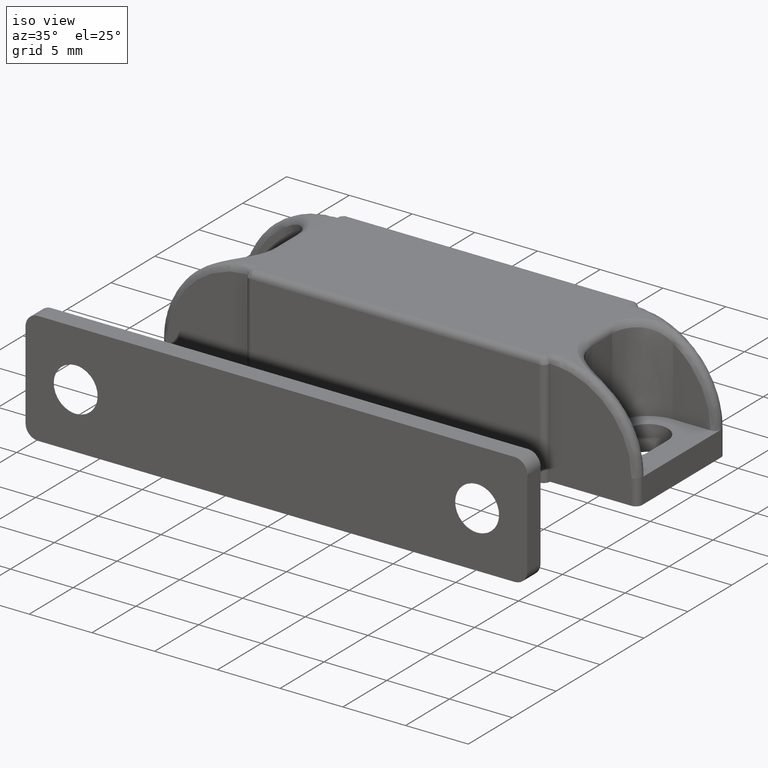
[diagram: clean part render]
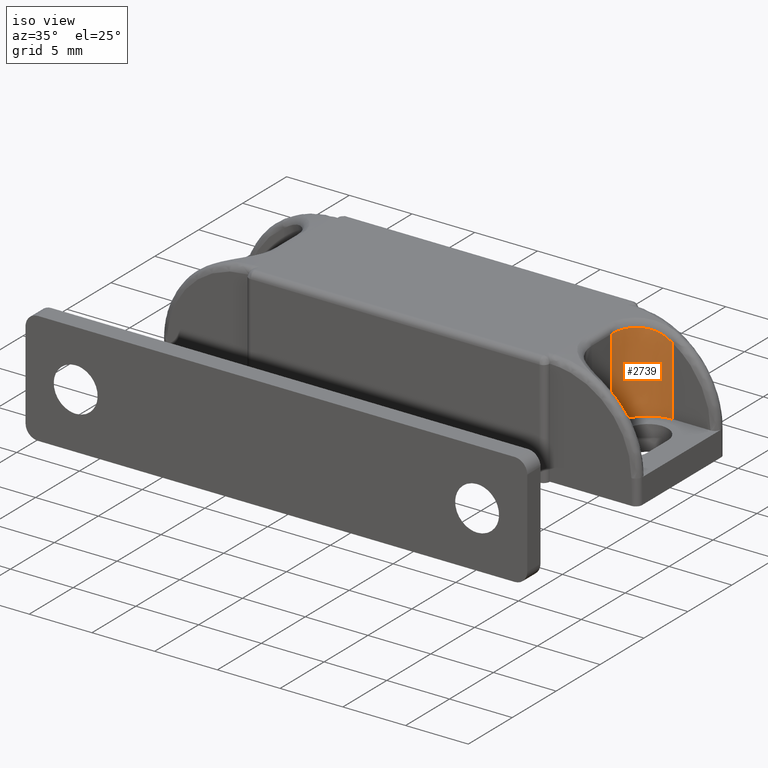
[diagram: same view with one face highlighted and labeled with its STEP entity id]
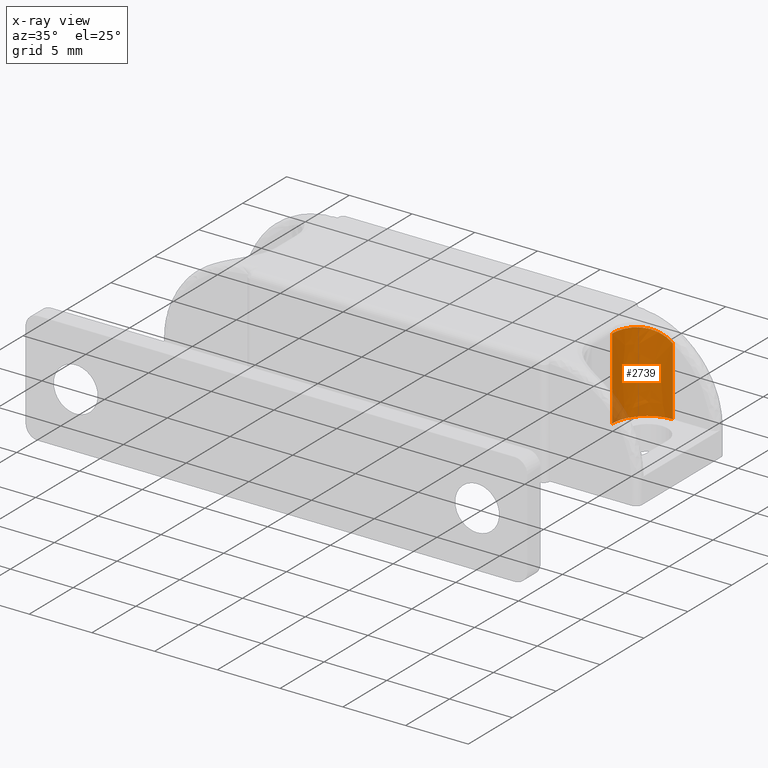
[diagram: x-ray of the same camera — body ghosted, the highlighted face saturated]
A machine part, iso view. The second image highlights one B-rep face of the part: STEP entity #2739.
The next image is the same camera in x-ray: the body ghosted, the highlighted face saturated — about 5% of this face is hidden behind the body in this view.
In plain terms, the highlighted face is a freeform B-spline surface patch.
Its self-contained STEP definition (entity closure, byte-faithful):
#1117=CARTESIAN_POINT('',(15.500000000000250,4.0,2.0));
#1118=VERTEX_POINT('',#1117);
#1124=CARTESIAN_POINT('',(12.649999999999601,1.149999999999296,2.0));
#1125=VERTEX_POINT('',#1124);
#1126=CARTESIAN_POINT('',(15.500000000000250,4.0,2.0));
#1127=CARTESIAN_POINT('',(12.649999999999631,3.999999999999915,2.000000000000000));
#1128=CARTESIAN_POINT('',(12.649999999999631,1.149999999999294,2.0));
#1136=(BOUNDED_CURVE()B_SPLINE_CURVE(2,(#1126,#1127,#1128),.UNSPECIFIED.,.F.,.U.)CURVE()GEOMETRIC_REPRESENTATION_ITEM()QUASI_UNIFORM_CURVE()RATIONAL_B_SPLINE_CURVE((1.0,0.707106781186548,1.0))REPRESENTATION_ITEM(''));
#1137=EDGE_CURVE('',#1118,#1125,#1136,.T.);
#1503=CARTESIAN_POINT('',(12.649999999999601,1.149999999999296,8.498269000280059));
#1504=VERTEX_POINT('',#1503);
#1718=CARTESIAN_POINT('',(15.500000000000250,4.0,7.477225575051480));
#1719=VERTEX_POINT('',#1718);
#1733=CARTESIAN_POINT('',(15.500000000000250,4.0,7.477225575051480));
#1734=CARTESIAN_POINT('',(15.342533980477061,3.999999999999915,7.595500917296441));
#1735=CARTESIAN_POINT('',(15.180854461800971,3.987048441760170,7.703745143861932));
#1736=CARTESIAN_POINT('',(14.932639988816611,3.944217609917127,7.851102248136860));
#1737=CARTESIAN_POINT('',(14.848953038572910,3.926022530853059,7.897716086630898));
#1738=CARTESIAN_POINT('',(14.679805799277609,3.880832237778185,7.985898137115862));
#1739=CARTESIAN_POINT('',(14.594077150637011,3.853682036269180,8.027550629756881));
#1740=CARTESIAN_POINT('',(14.341013269995100,3.759908199275444,8.142106545607671));
#1741=CARTESIAN_POINT('',(14.175765901301540,3.680636282963621,8.205744913337862));
#1742=CARTESIAN_POINT('',(13.975522623785180,3.558457956028936,8.271752995983142));
#1743=CARTESIAN_POINT('',(13.935792910791911,3.532860713563414,8.284276500943285));
#1744=CARTESIAN_POINT('',(13.857036058473120,3.479257067181568,8.308023474254382));
#1745=CARTESIAN_POINT('',(13.817887646184330,3.451153270729679,8.319278285485298));
#1746=CARTESIAN_POINT('',(13.702976020196131,3.364145027094741,8.350812170641655));
#1747=CARTESIAN_POINT('',(13.629470321188849,3.302405064075499,8.368962714956576));
#1748=CARTESIAN_POINT('',(13.488775695238990,3.171560198240437,8.400527408798020));
#1749=CARTESIAN_POINT('',(13.421586153425540,3.102455556498614,8.413939904119607));
#1750=CARTESIAN_POINT('',(13.325739390671661,2.993213907053859,8.431155364680498));
#1751=CARTESIAN_POINT('',(13.294614654677201,2.955867777508363,8.436409043755397));
#1752=CARTESIAN_POINT('',(13.234063765784629,2.879281912724904,8.446045716244440));
#1753=CARTESIAN_POINT('',(13.204556470927940,2.839925260656059,8.450439696385883));
#1754=CARTESIAN_POINT('',(13.062504246110960,2.639848501683703,8.470319312811046));
#1755=CARTESIAN_POINT('',(12.966764013490350,2.470319886999754,8.479632140527755));
#1756=CARTESIAN_POINT('',(12.849589419215651,2.202297983037884,8.488774612689145));
#1757=CARTESIAN_POINT('',(12.814939920676020,2.110558988094381,8.490993261740830));
#1758=CARTESIAN_POINT('',(12.754977430880819,1.922704532285648,8.494343706381095));
#1759=CARTESIAN_POINT('',(12.730094705148581,1.827971264131371,8.495455532326192));
#1760=CARTESIAN_POINT('',(12.670271691535341,1.541432254682525,8.497844561481713));
#1761=CARTESIAN_POINT('',(12.649999999999601,1.347312562967763,8.498269000280006));
#1762=CARTESIAN_POINT('',(12.649999999999601,1.149999999999296,8.498269000280009));
#1763=B_SPLINE_CURVE_WITH_KNOTS('',3,(#1733,#1734,#1735,#1736,#1737,#1738,#1739,#1740,#1741,#1742,#1743,#1744,#1745,#1746,#1747,#1748,#1749,#1750,#1751,#1752,#1753,#1754,#1755,#1756,#1757,#1758,#1759,#1760,#1761,#1762),.UNSPECIFIED.,.F.,.U.,(4,2,2,2,2,2,2,2,2,2,2,2,2,2,4),(0.0,0.125000000000000,0.187500000000000,0.250000000000000,0.375000000000001,0.406250000000001,0.437500000000001,0.500000000000000,0.562500000000000,0.593750000000000,0.625000000000000,0.750000000000001,0.812500000000000,0.875000000000000,1.0),.UNSPECIFIED.);
#1764=EDGE_CURVE('',#1719,#1504,#1763,.T.);
#2704=CARTESIAN_POINT('',(12.649999999999601,1.149999999999296,8.498269000280059));
#2705=CARTESIAN_POINT('',(12.649999999999601,1.149999999999296,2.0));
#2706=QUASI_UNIFORM_CURVE('',1,(#2704,#2705),.UNSPECIFIED.,.F.,.U.);
#2707=EDGE_CURVE('',#1504,#1125,#2706,.T.);
#2715=CARTESIAN_POINT('',(15.574604302677709,3.999023376180251,8.660725725287060));
#2716=CARTESIAN_POINT('',(15.574604302677709,3.999023376180251,1.833481856867823));
#2717=CARTESIAN_POINT('',(12.519400779932370,4.079026696004767,8.660725725287062));
#2718=CARTESIAN_POINT('',(12.519400779932370,4.079026696004767,1.833481856867823));
#2719=CARTESIAN_POINT('',(12.652712568491340,1.025684746008063,8.660725725287060));
#2720=CARTESIAN_POINT('',(12.652712568491340,1.025684746008063,1.833481856867823));
#2728=(BOUNDED_SURFACE()B_SPLINE_SURFACE(1,2,((#2715,#2717,#2719),(#2716,#2718,#2720)),.UNSPECIFIED.,.F.,.F.,.U.)B_SPLINE_SURFACE_WITH_KNOTS((2,2),(3,3),(0.0,6.827243868419237),(0.0,4.956861074555719),.UNSPECIFIED.)GEOMETRIC_REPRESENTATION_ITEM()RATIONAL_B_SPLINE_SURFACE(((1.0,0.681998360062498,1.0),(1.0,0.681998360062498,1.0)))REPRESENTATION_ITEM('')SURFACE());
#2729=CARTESIAN_POINT('',(15.500000000000250,4.0,7.477225575051480));
#2730=CARTESIAN_POINT('',(15.500000000000250,4.0,2.0));
#2731=QUASI_UNIFORM_CURVE('',1,(#2729,#2730),.UNSPECIFIED.,.F.,.U.);
#2732=EDGE_CURVE('',#1719,#1118,#2731,.T.);
#2733=ORIENTED_EDGE('',*,*,#2732,.F.);
#2734=ORIENTED_EDGE('',*,*,#1764,.T.);
#2735=ORIENTED_EDGE('',*,*,#2707,.T.);
#2736=ORIENTED_EDGE('',*,*,#1137,.F.);
#2737=EDGE_LOOP('',(#2733,#2734,#2735,#2736));
#2738=FACE_OUTER_BOUND('',#2737,.T.);
#2739=ADVANCED_FACE('',(#2738),#2728,.F.);